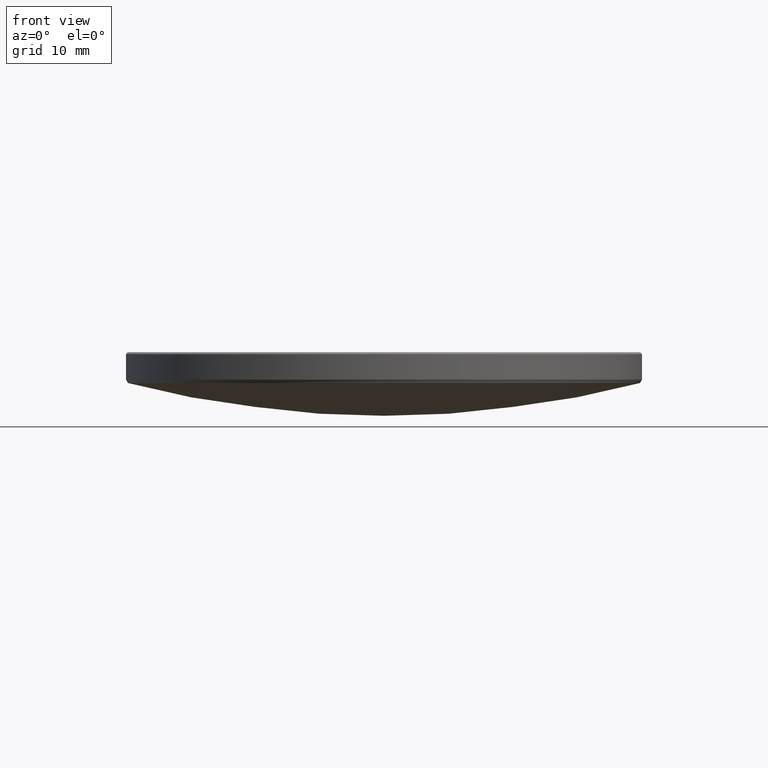
[diagram: clean part render]
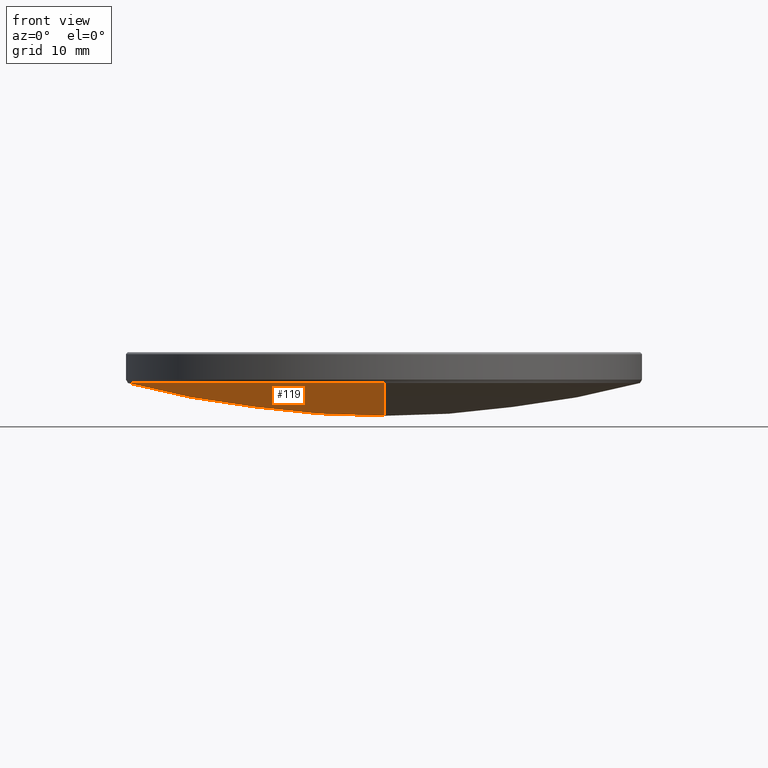
[diagram: same view with one face highlighted and labeled with its STEP entity id]
A machine part, front view. The second image highlights one B-rep face of the part: STEP entity #119.
In plain terms, the highlighted spherical surface has radius 100.08 mm.
Its self-contained STEP definition (entity closure, byte-faithful):
#1 = ORIENTED_EDGE ( 'NONE', *, *, #6, .T. ) ;
#2 = AXIS2_PLACEMENT_3D ( 'NONE', #86, #295, #62 ) ;
#6 = EDGE_CURVE ( 'NONE', #25, #98, #66, .T. ) ;
#9 = AXIS2_PLACEMENT_3D ( 'NONE', #208, #127, #180 ) ;
#12 = FACE_OUTER_BOUND ( 'NONE', #306, .T. ) ;
#13 = DIRECTION ( 'NONE',  ( 1.000000000000000000, -0.000000000000000000, 0.000000000000000000 ) ) ;
#25 = VERTEX_POINT ( 'NONE', #204 ) ;
#28 = CARTESIAN_POINT ( 'NONE',  ( 0.000000000000000000, 0.000000000000000000, 109.8031321807306142 ) ) ;
#29 = DIRECTION ( 'NONE',  ( 1.000000000000000000, 0.000000000000000000, 0.000000000000000000 ) ) ;
#42 = CIRCLE ( 'NONE', #329, 25.20669079081241648 ) ;
#45 = CARTESIAN_POINT ( 'NONE',  ( 0.000000000000000000, 6.128132582933356375E-15, 9.723132180730592822 ) ) ;
#49 = AXIS2_PLACEMENT_3D ( 'NONE', #28, #13, #228 ) ;
#62 = DIRECTION ( 'NONE',  ( 0.000000000000000000, 1.000000000000000000, 0.000000000000000000 ) ) ;
#66 = CIRCLE ( 'NONE', #256, 25.20669079081241648 ) ;
#70 = EDGE_CURVE ( 'NONE', #328, #78, #184, .T. ) ;
#78 = VERTEX_POINT ( 'NONE', #153 ) ;
#86 = CARTESIAN_POINT ( 'NONE',  ( 0.000000000000000000, 0.000000000000000000, 109.8031321807306142 ) ) ;
#98 = VERTEX_POINT ( 'NONE', #236 ) ;
#119 = ADVANCED_FACE ( 'NONE', ( #12 ), #318, .T. ) ;
#122 = ORIENTED_EDGE ( 'NONE', *, *, #226, .T. ) ;
#126 = CARTESIAN_POINT ( 'NONE',  ( 0.000000000000000000, 0.000000000000000000, 12.94948413701273182 ) ) ;
#127 = DIRECTION ( 'NONE',  ( -1.000000000000000000, 1.224646799147353207E-16, 0.000000000000000000 ) ) ;
#150 = ORIENTED_EDGE ( 'NONE', *, *, #70, .F. ) ;
#153 = CARTESIAN_POINT ( 'NONE',  ( 0.000000000000000000, 25.20669079081240582, 12.94948413701272472 ) ) ;
#179 = DIRECTION ( 'NONE',  ( 1.000000000000000000, 0.000000000000000000, 0.000000000000000000 ) ) ;
#180 = DIRECTION ( 'NONE',  ( -1.224646799147353207E-16, -1.000000000000000000, 0.000000000000000000 ) ) ;
#184 = CIRCLE ( 'NONE', #49, 100.0800000000000125 ) ;
#201 = CARTESIAN_POINT ( 'NONE',  ( 0.000000000000000000, 0.000000000000000000, 12.94948413701273182 ) ) ;
#204 = CARTESIAN_POINT ( 'NONE',  ( -3.086929319406547016E-15, -25.20669079081240582, 12.94948413701272472 ) ) ;
#208 = CARTESIAN_POINT ( 'NONE',  ( 0.000000000000000000, 0.000000000000000000, 109.8031321807306142 ) ) ;
#226 = EDGE_CURVE ( 'NONE', #328, #25, #284, .T. ) ;
#228 = DIRECTION ( 'NONE',  ( 0.000000000000000000, 0.000000000000000000, -1.000000000000000000 ) ) ;
#233 = DIRECTION ( 'NONE',  ( 0.000000000000000000, 0.000000000000000000, -1.000000000000000000 ) ) ;
#236 = CARTESIAN_POINT ( 'NONE',  ( -25.20669079081242003, 3.098766094620413518E-15, 12.94948413701273182 ) ) ;
#256 = AXIS2_PLACEMENT_3D ( 'NONE', #126, #233, #179 ) ;
#282 = ORIENTED_EDGE ( 'NONE', *, *, #297, .T. ) ;
#284 = CIRCLE ( 'NONE', #9, 100.0800000000000125 ) ;
#295 = DIRECTION ( 'NONE',  ( -1.000000000000000000, 0.000000000000000000, 0.000000000000000000 ) ) ;
#297 = EDGE_CURVE ( 'NONE', #98, #78, #42, .T. ) ;
#306 = EDGE_LOOP ( 'NONE', ( #150, #122, #1, #282 ) ) ;
#311 = DIRECTION ( 'NONE',  ( 0.000000000000000000, 0.000000000000000000, -1.000000000000000000 ) ) ;
#318 = SPHERICAL_SURFACE ( 'NONE', #2, 100.0800000000000125 ) ;
#328 = VERTEX_POINT ( 'NONE', #45 ) ;
#329 = AXIS2_PLACEMENT_3D ( 'NONE', #201, #311, #29 ) ;